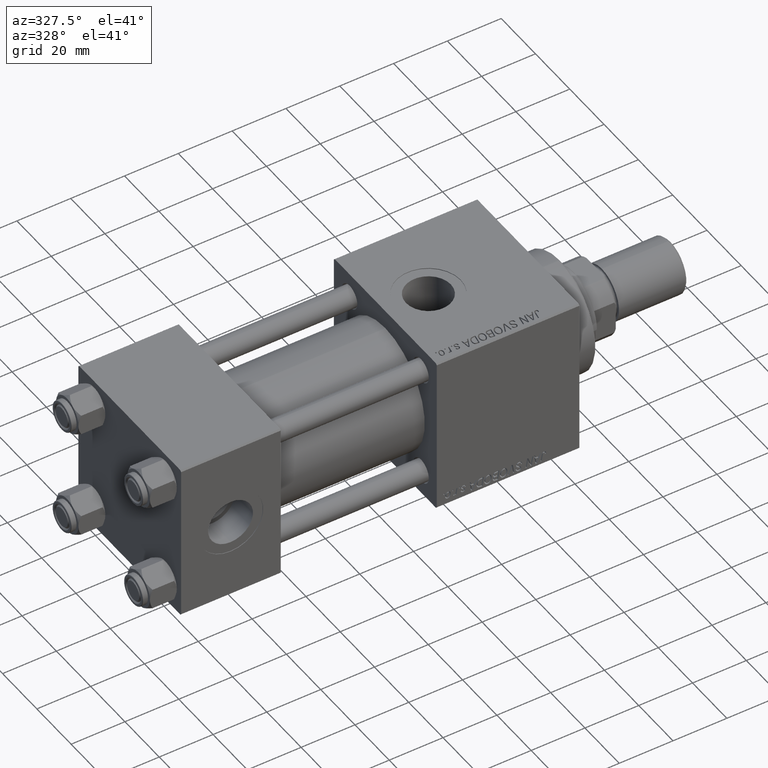
[diagram: clean part render]
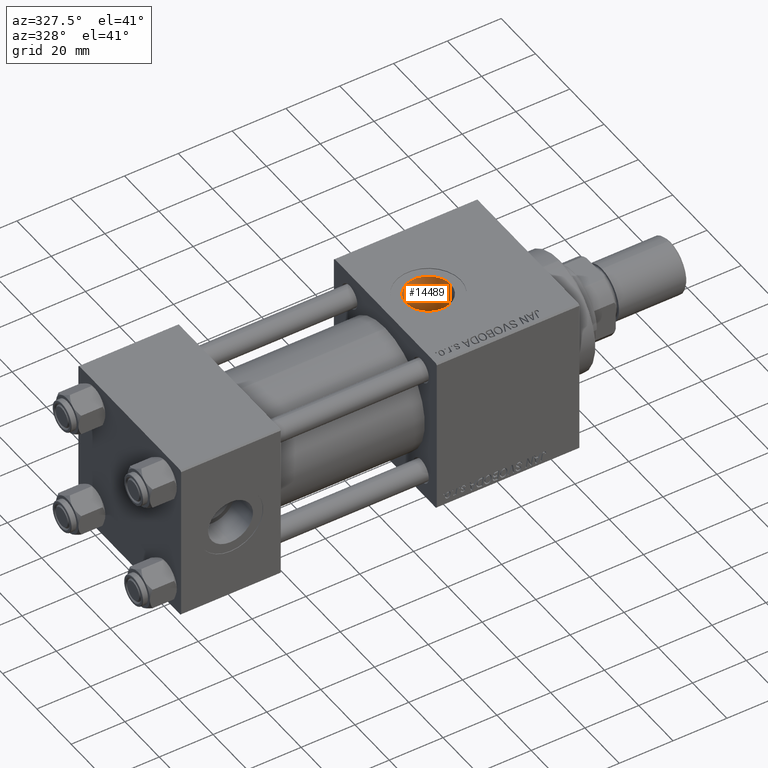
[diagram: same view with one face highlighted and labeled with its STEP entity id]
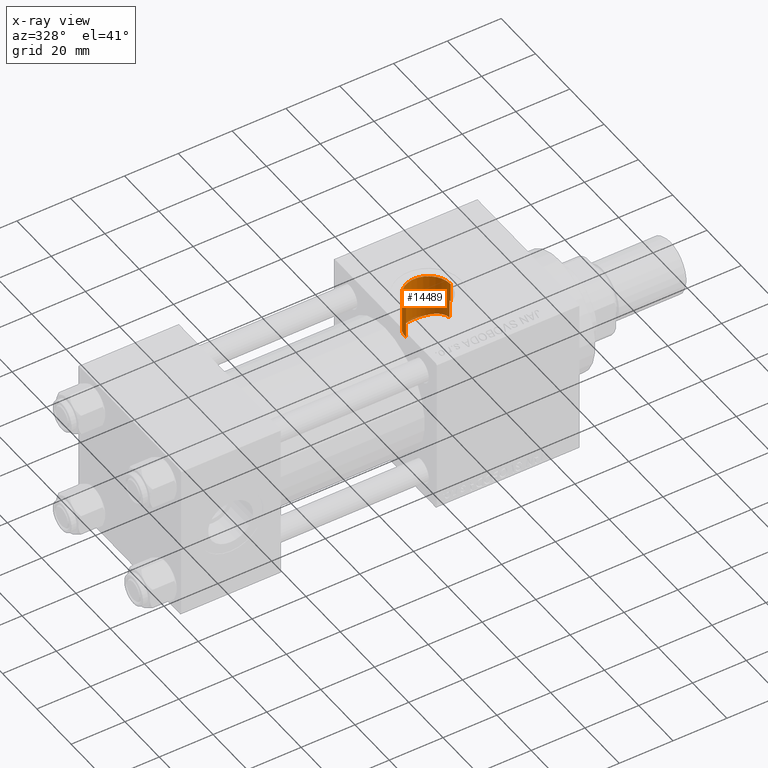
[diagram: x-ray of the same camera — body ghosted, the highlighted face saturated]
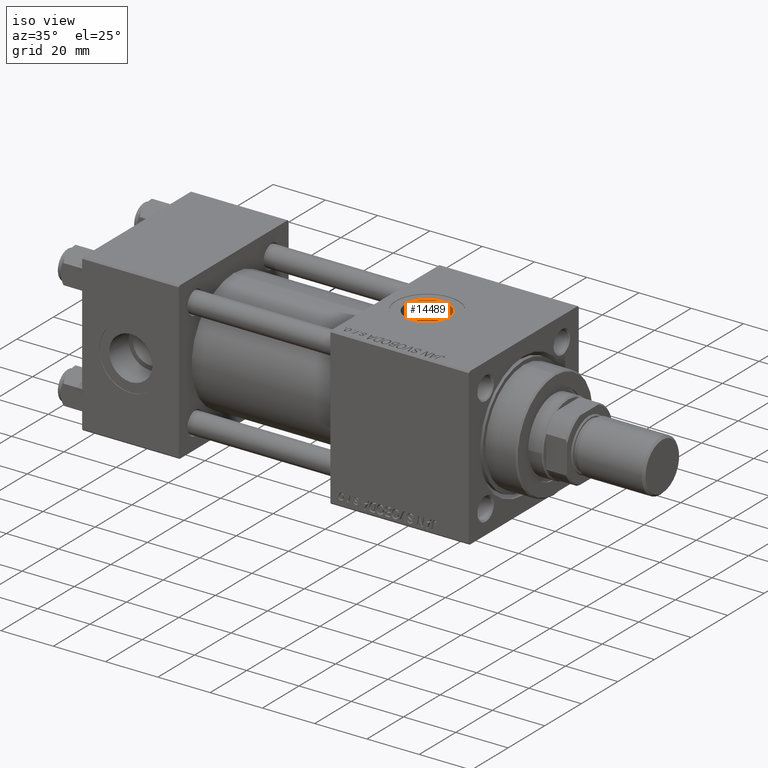
[diagram: same view with one face highlighted and labeled with its STEP entity id]
A machine part, auxiliary view. The second image highlights one B-rep face of the part: STEP entity #14489.
The next image is the same camera in x-ray: the body ghosted, the highlighted face saturated — about 1% of this face is hidden behind the body in this view.
A second angle (iso view) of the same face is appended — the face is thin or edge-on in the first view.
In plain terms, the highlighted cylindrical surface (edge-blend (fillet) strip) has radius 8.33 mm, axis along (0, 0, -1).
Its self-contained STEP definition (entity closure, byte-faithful):
#1669 = CARTESIAN_POINT ( 'NONE',  ( 102.6700000000000017, -3.469446951953613794E-15, 29.79999999999999716 ) ) ;
#1936 = ORIENTED_EDGE ( 'NONE', *, *, #39766, .T. ) ;
#2448 = CARTESIAN_POINT ( 'NONE',  ( 114.3094557415239905, 7.648942304453065333, 13.48185071310164318 ) ) ;
#2699 = CARTESIAN_POINT ( 'NONE',  ( 111.7204179385424112, 8.316316922132150680, 13.08044599360020044 ) ) ;
#2825 = CARTESIAN_POINT ( 'NONE',  ( 119.2999999999999829, 0.7063285354565354002, 52.79999999999999716 ) ) ;
#2952 = CARTESIAN_POINT ( 'NONE',  ( 113.3101403164750565, 8.007790053772854577, 13.27144766602746984 ) ) ;
#3198 = CARTESIAN_POINT ( 'NONE',  ( 115.7013846757648139, 6.896553212426753454, 13.88449017423048204 ) ) ;
#3840 = VERTEX_POINT ( 'NONE', #1669 ) ;
#4694 = EDGE_CURVE ( 'NONE', #31082, #31458, #39851, .T. ) ;
#4862 = LINE ( 'NONE', #20524, #10155 ) ;
#5099 = DIRECTION ( 'NONE',  ( -0.000000000000000000, -0.000000000000000000, -1.000000000000000000 ) ) ;
#5334 = AXIS2_PLACEMENT_3D ( 'NONE', #33620, #29773, #45405 ) ;
#5501 = EDGE_CURVE ( 'NONE', #48204, #41589, #13903, .T. ) ;
#6195 = EDGE_CURVE ( 'NONE', #48204, #31458, #45872, .T. ) ;
#6289 = CARTESIAN_POINT ( 'NONE',  ( 105.7567134674390417, 6.493535737546835662, 14.07819411470011239 ) ) ;
#6782 = CARTESIAN_POINT ( 'NONE',  ( 108.5224199253087818, 7.970776178815810020, 13.29429473676388973 ) ) ;
#7039 = CARTESIAN_POINT ( 'NONE',  ( 109.2976579557378756, 8.158530844714539043, 13.17929287996980747 ) ) ;
#8444 = DIRECTION ( 'NONE',  ( 0.000000000000000000, 0.000000000000000000, -1.000000000000000000 ) ) ;
#10144 = CARTESIAN_POINT ( 'NONE',  ( 112.7879913300364905, 8.140303239488138942, 13.19058330274246593 ) ) ;
#10155 = VECTOR ( 'NONE', #36145, 1000.000000000000000 ) ;
#10403 = CARTESIAN_POINT ( 'NONE',  ( 119.2999999999999829, 0.7063285354565354002, 15.48389808801387701 ) ) ;
#10652 = CARTESIAN_POINT ( 'NONE',  ( 105.3619139893283432, 6.154303259437297058, 14.23165687271048085 ) ) ;
#10904 = CARTESIAN_POINT ( 'NONE',  ( 102.9323351773737869, 2.143895289495521883, 15.36035123208332109 ) ) ;
#11162 = CARTESIAN_POINT ( 'NONE',  ( 104.6351521567280258, 5.399275359235570448, 14.53490046566675176 ) ) ;
#12457 = CARTESIAN_POINT ( 'NONE',  ( 119.3200361445783102, 0.4708856903043578401, 22.49630535626710781 ) ) ;
#13903 = B_SPLINE_CURVE_WITH_KNOTS ( 'NONE', 3,
 ( #43970, #12457, #31690, #16557 ),
 .UNSPECIFIED., .F., .F.,
 ( 4, 4 ),
 ( 0.000000000000000000, 0.0007063285354565328363 ),
 .UNSPECIFIED. ) ;
#13996 = CARTESIAN_POINT ( 'NONE',  ( 107.0641356425913244, 7.346187746824329956, 13.64937350183227771 ) ) ;
#14149 = CYLINDRICAL_SURFACE ( 'NONE', #5334, 8.330000000000003624 ) ;
#14248 = CARTESIAN_POINT ( 'NONE',  ( 118.9347458643765805, 2.549478185781639983, 15.29108801674696139 ) ) ;
#14489 = ADVANCED_FACE ( 'NONE', ( #45655 ), #14149, .F. ) ;
#14505 = CARTESIAN_POINT ( 'NONE',  ( 119.1550002228559748, 1.780279521111761465, 15.40614980614642171 ) ) ;
#16206 = ORIENTED_EDGE ( 'NONE', *, *, #33734, .F. ) ;
#16433 = CARTESIAN_POINT ( 'NONE',  ( 119.2999999999999829, 0.7063285354565354002, 22.48891060056044466 ) ) ;
#16557 = CARTESIAN_POINT ( 'NONE',  ( 119.3300000000000125, 2.755455270027974659E-15, 22.50000000000000355 ) ) ;
#17845 = CARTESIAN_POINT ( 'NONE',  ( 102.6700000000000017, 1.898304232322969090E-15, 15.50000000000000000 ) ) ;
#17979 = ORIENTED_EDGE ( 'NONE', *, *, #5501, .T. ) ;
#18099 = CARTESIAN_POINT ( 'NONE',  ( 116.1213706297519224, 6.590259460215506238, 14.03424939317718945 ) ) ;
#18230 = DIRECTION ( 'NONE',  ( 0.000000000000000000, 0.000000000000000000, -1.000000000000000000 ) ) ;
#18353 = CARTESIAN_POINT ( 'NONE',  ( 115.0228866172804487, 7.298933092229524355, 13.67473780800534833 ) ) ;
#18601 = CARTESIAN_POINT ( 'NONE',  ( 111.1827731937053017, 8.345639263937126628, 13.06143459154865738 ) ) ;
#18847 = ORIENTED_EDGE ( 'NONE', *, *, #4694, .T. ) ;
#18848 = CARTESIAN_POINT ( 'NONE',  ( 118.1821809494404505, 4.252752687106064577, 14.91311828418762353 ) ) ;
#20524 = CARTESIAN_POINT ( 'NONE',  ( 102.6700000000000017, -3.469446951953613794E-15, 52.79999999999999716 ) ) ;
#21255 = CARTESIAN_POINT ( 'NONE',  ( 119.3300000000000125, 2.755455270027974659E-15, 22.50000000000000355 ) ) ;
#21933 = CARTESIAN_POINT ( 'NONE',  ( 119.3300000000000125, -2.449316168263869821E-15, 29.79999999999999716 ) ) ;
#21941 = CARTESIAN_POINT ( 'NONE',  ( 113.5653903393932751, 7.929573453247051873, 13.31850891624571531 ) ) ;
#22197 = CARTESIAN_POINT ( 'NONE',  ( 106.3914020546078660, 6.943847275614624337, 13.85860288735603696 ) ) ;
#22273 = CARTESIAN_POINT ( 'NONE',  ( 102.6700000000000017, 1.898304232322969090E-15, 15.50000000000000000 ) ) ;
#22443 = CARTESIAN_POINT ( 'NONE',  ( 102.7748422588737611, 1.345113678925240475, 15.44384467796440497 ) ) ;
#22692 = CARTESIAN_POINT ( 'NONE',  ( 109.5605833038424208, 8.209149030831014215, 13.14769526555237533 ) ) ;
#23195 = AXIS2_PLACEMENT_3D ( 'NONE', #39458, #5099, #27686 ) ;
#23857 = CARTESIAN_POINT ( 'NONE',  ( 119.3300000000000125, -2.449316168263869032E-15, 52.79999999999999716 ) ) ;
#24918 = CARTESIAN_POINT ( 'NONE',  ( 119.2999999999999829, 0.7063285354565354002, 15.48389808801387701 ) ) ;
#26284 = CARTESIAN_POINT ( 'NONE',  ( 114.0650487448087489, 7.750150897617362311, 13.42370947118261171 ) ) ;
#26532 = CARTESIAN_POINT ( 'NONE',  ( 103.4884433949717391, 3.639785051710008545, 15.07496769168805351 ) ) ;
#27686 = DIRECTION ( 'NONE',  ( 1.000000000000000000, 0.000000000000000000, 0.000000000000000000 ) ) ;
#27694 = LINE ( 'NONE', #23857, #45315 ) ;
#29620 = CARTESIAN_POINT ( 'NONE',  ( 103.0866881673992452, 2.655374492085107896, 15.27912538186901692 ) ) ;
#29773 = DIRECTION ( 'NONE',  ( 0.000000000000000000, 0.000000000000000000, -1.000000000000000000 ) ) ;
#29877 = CARTESIAN_POINT ( 'NONE',  ( 104.3108638884341701, 4.991865470557804052, 14.68134318030003804 ) ) ;
#30032 = VERTEX_POINT ( 'NONE', #21933 ) ;
#30126 = CARTESIAN_POINT ( 'NONE',  ( 118.6535066739793223, 3.299105492354561520, 15.14695296028899207 ) ) ;
#30374 = CARTESIAN_POINT ( 'NONE',  ( 102.6700000000000443, 0.2692781161559564818, 15.50000000000000355 ) ) ;
#31082 = VERTEX_POINT ( 'NONE', #22273 ) ;
#31458 = VERTEX_POINT ( 'NONE', #24918 ) ;
#31690 = CARTESIAN_POINT ( 'NONE',  ( 119.3300000000000125, 0.2354428451521802246, 22.50000000000000355 ) ) ;
#33620 = CARTESIAN_POINT ( 'NONE',  ( 111.0000000000000000, -3.469446951953613794E-15, 52.79999999999999716 ) ) ;
#33721 = CARTESIAN_POINT ( 'NONE',  ( 117.9017814515972162, 4.693120186998884336, 14.77885283960395668 ) ) ;
#33734 = EDGE_CURVE ( 'NONE', #3840, #30032, #42025, .T. ) ;
#33978 = CARTESIAN_POINT ( 'NONE',  ( 112.5206788388489372, 8.194464177599160237, 13.15686343614056142 ) ) ;
#34227 = CARTESIAN_POINT ( 'NONE',  ( 114.7878989153694107, 7.423653917640651301, 13.60720322249615144 ) ) ;
#34477 = CARTESIAN_POINT ( 'NONE',  ( 118.8491620312711774, 2.801948762054946140, 15.24674929831635595 ) ) ;
#36145 = DIRECTION ( 'NONE',  ( 0.000000000000000000, 0.000000000000000000, -1.000000000000000000 ) ) ;
#37810 = CARTESIAN_POINT ( 'NONE',  ( 107.3002806938656590, 7.468012193495477291, 13.58288275005221379 ) ) ;
#38056 = CARTESIAN_POINT ( 'NONE',  ( 102.6830263376666181, 0.5382373393380799342, 15.49298755787481774 ) ) ;
#38303 = CARTESIAN_POINT ( 'NONE',  ( 108.0235363201844763, 7.798107477347327787, 13.39787891672378706 ) ) ;
#38900 = EDGE_CURVE ( 'NONE', #30032, #41589, #27694, .T. ) ;
#39458 = CARTESIAN_POINT ( 'NONE',  ( 111.0000000000000000, -3.469446951953613794E-15, 29.79999999999999716 ) ) ;
#39766 = EDGE_CURVE ( 'NONE', #3840, #31082, #4862, .T. ) ;
#39851 = B_SPLINE_CURVE_WITH_KNOTS ( 'NONE', 3,
 ( #17845, #30374, #38056, #45998, #22443, #10904, #29620, #26532, #49083, #29877, #11162, #10652, #6289, #22197, #41401, #13996, #37810, #38303, #6782, #7039, #22692, #42160, #46255, #18601, #2699, #33978, #10144, #2952, #21941, #26284, #2448, #34227, #18353, #3198, #18099, #49833, #49593, #33721, #18848, #49337, #30126, #34477, #14248, #14505, #45249, #10403 ),
 .UNSPECIFIED., .F., .F.,
 ( 4, 2, 2, 2, 2, 2, 2, 2, 2, 2, 2, 2, 2, 2, 2, 2, 2, 2, 2, 2, 2, 2, 4 ),
 ( 0.02586561750490627698, 0.02667257115183745836, 0.02747952479876863974, 0.02909343209263099903, 0.03070733938649336178, 0.03232124668035572107, 0.03393515397421808383, 0.03474210762114926521, 0.03554906126808044659, 0.03716296856194277465, 0.03796992220887392133, 0.03877687585580506108, 0.04039078314966738914, 0.04119773679659853582, 0.04200469044352968251, 0.04281164409046082225, 0.04361859773739196200, 0.04523250503125424843, 0.04684641232511653486, 0.04846031961897881435, 0.04926727326590996797, 0.05007422691284112160, 0.05168813420670342190 ),
 .UNSPECIFIED. ) ;
#40237 = VECTOR ( 'NONE', #18230, 1000.000000000000000 ) ;
#40768 = EDGE_LOOP ( 'NONE', ( #48412, #16206, #1936, #18847, #48949, #17979 ) ) ;
#41401 = CARTESIAN_POINT ( 'NONE',  ( 106.6103928475615135, 7.084409057837727453, 13.78705986442867193 ) ) ;
#41589 = VERTEX_POINT ( 'NONE', #21255 ) ;
#42025 = CIRCLE ( 'NONE', #23195, 8.330000000000003624 ) ;
#42160 = CARTESIAN_POINT ( 'NONE',  ( 110.0961245563538711, 8.285231283310348971, 13.09988401430628535 ) ) ;
#43970 = CARTESIAN_POINT ( 'NONE',  ( 119.2999999999999829, 0.7063285354565354002, 22.48891060056044466 ) ) ;
#45249 = CARTESIAN_POINT ( 'NONE',  ( 119.2535736795805832, 1.251879847823938130, 15.45901168942802251 ) ) ;
#45315 = VECTOR ( 'NONE', #8444, 1000.000000000000000 ) ;
#45405 = DIRECTION ( 'NONE',  ( -1.000000000000000000, 0.000000000000000000, 0.000000000000000000 ) ) ;
#45655 = FACE_OUTER_BOUND ( 'NONE', #40768, .T. ) ;
#45872 = LINE ( 'NONE', #2825, #40237 ) ;
#45998 = CARTESIAN_POINT ( 'NONE',  ( 102.7353150131715722, 1.075514947314766045, 15.46498077916762526 ) ) ;
#46255 = CARTESIAN_POINT ( 'NONE',  ( 110.3699255016522756, 8.310562936261201017, 13.08375847227048894 ) ) ;
#48204 = VERTEX_POINT ( 'NONE', #16433 ) ;
#48412 = ORIENTED_EDGE ( 'NONE', *, *, #38900, .F. ) ;
#48949 = ORIENTED_EDGE ( 'NONE', *, *, #6195, .F. ) ;
#49083 = CARTESIAN_POINT ( 'NONE',  ( 103.7382412053277676, 4.114622947877689896, 14.95093430025990600 ) ) ;
#49337 = CARTESIAN_POINT ( 'NONE',  ( 118.5428870207784797, 3.544564506934533732, 15.09123298641117650 ) ) ;
#49593 = CARTESIAN_POINT ( 'NONE',  ( 117.2636960965467665, 5.515983638965261449, 14.49185263653180478 ) ) ;
#49833 = CARTESIAN_POINT ( 'NONE',  ( 116.9021014551140070, 5.901284207169342544, 14.33759116759393493 ) ) ;